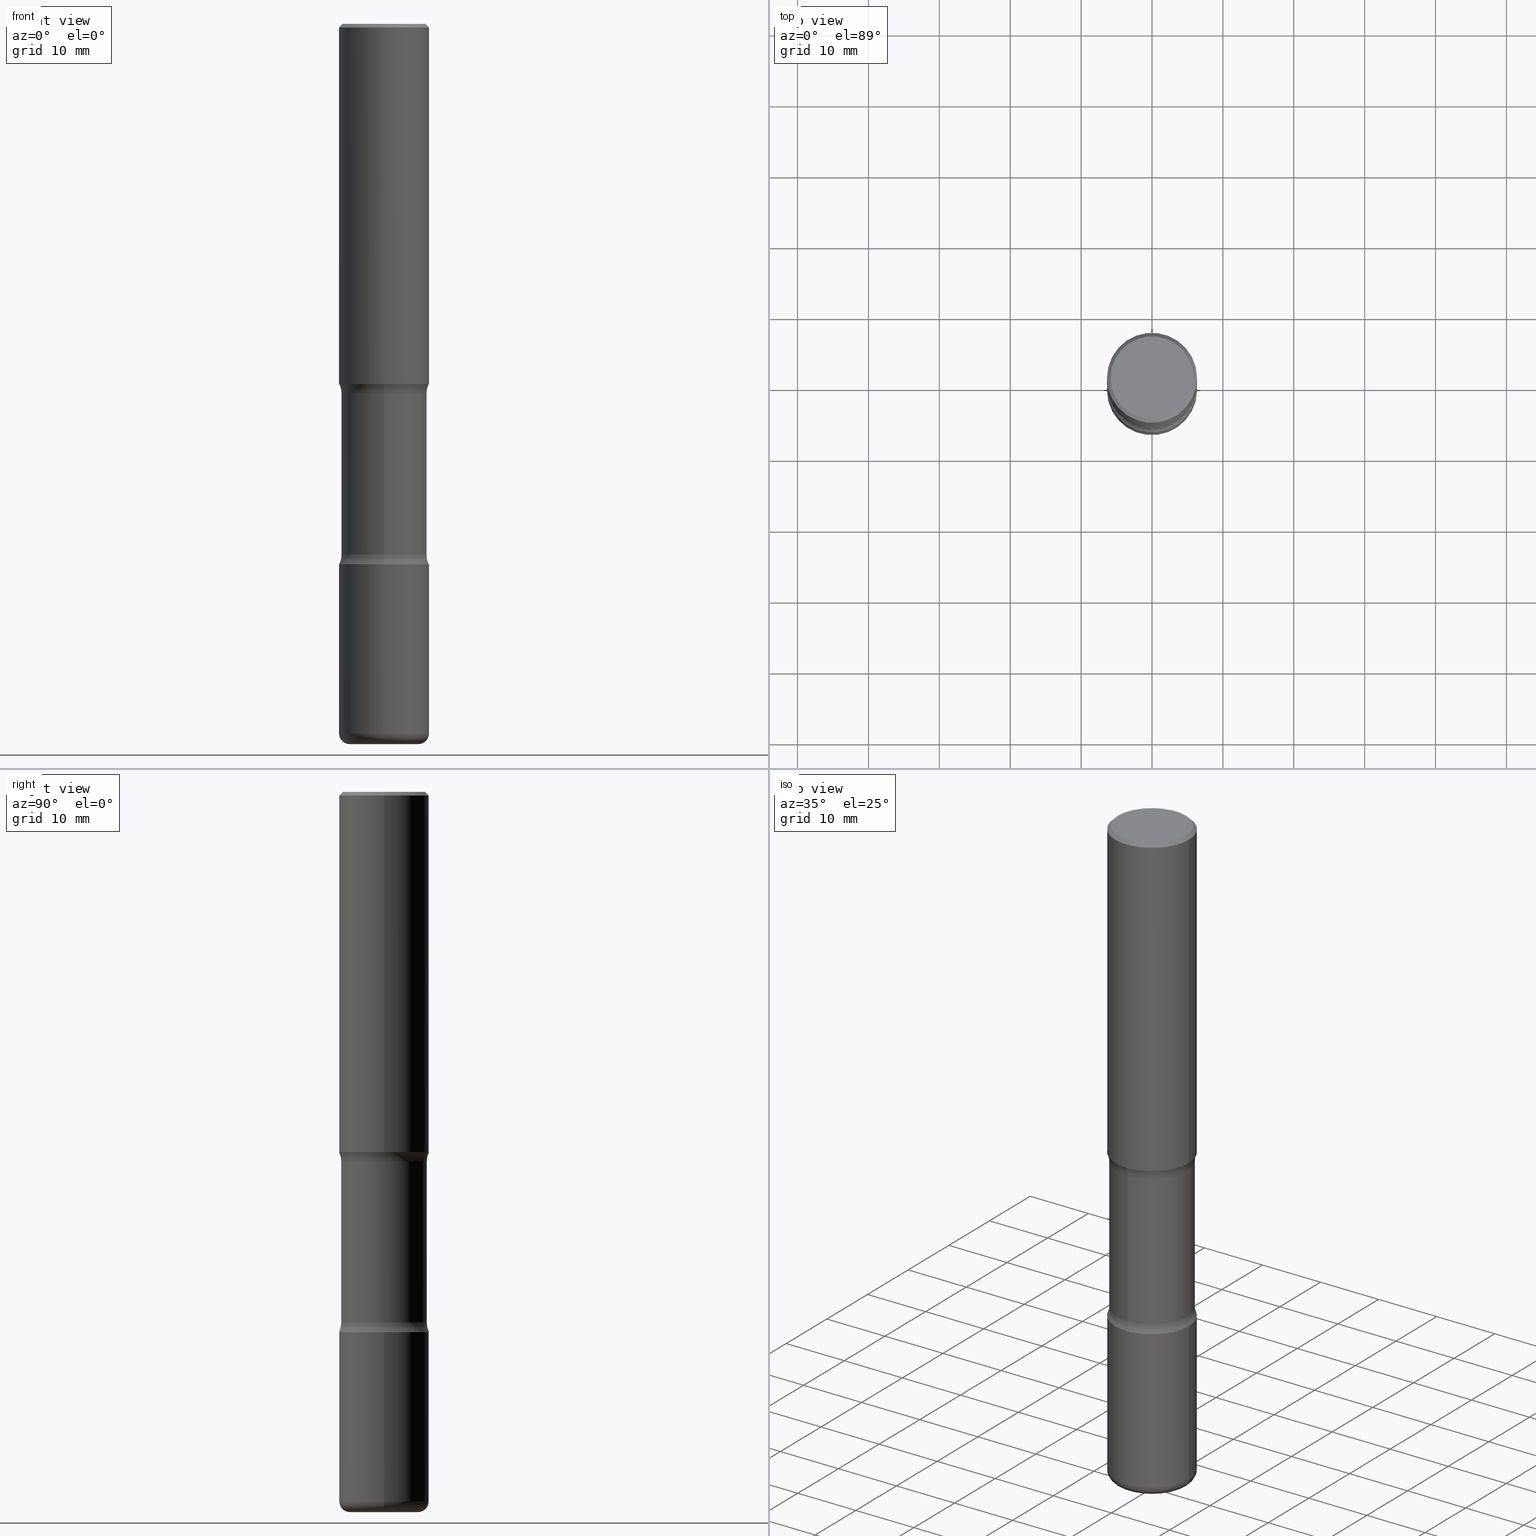
[diagram: canonical four-view strip — front | top / right | iso, engineering-drawing reading convention]
A machine part, canonical four-view strip (front | top / right | iso — engineering-drawing reading convention). The complete STEP part file that produces these views, byte-faithful:
ISO-10303-21;
HEADER;
FILE_DESCRIPTION (( 'STEP AP203' ),
    '1' );
FILE_NAME ('37885.STEP',
    '2024-03-02T01:04:47',
    ( '' ),
    ( '' ),
    'SwSTEP 2.0',
    'SolidWorks 2023',
    '' );
FILE_SCHEMA (( 'CONFIG_CONTROL_DESIGN' ));
ENDSEC;

DATA;
#1 = COORDINATED_UNIVERSAL_TIME_OFFSET ( 5, 0, .BEHIND. ) ;
#2 = AXIS2_PLACEMENT_3D ( 'NONE', #433, #383, #391 ) ;
#3 = AXIS2_PLACEMENT_3D ( 'NONE', #254, #126, #242 ) ;
#4 = ORIENTED_EDGE ( 'NONE', *, *, #347, .T. ) ;
#5 = EDGE_CURVE ( 'NONE', #344, #221, #487, .T. ) ;
#6 = DIRECTION ( 'NONE',  ( -0.7071067811865467956, 2.468850131082249172E-15, -0.7071067811865482389 ) ) ;
#7 = FACE_OUTER_BOUND ( 'NONE', #241, .T. ) ;
#8 = DIRECTION ( 'NONE',  ( 0.7071067811865467956, -7.319954787623254468E-15, -0.7071067811865482389 ) ) ;
#9 =( NAMED_UNIT ( * ) PLANE_ANGLE_UNIT ( ) SI_UNIT ( $, .RADIAN. ) );
#10 = CIRCLE ( 'NONE', #106, 0.2500000000000002776 ) ;
#11 = ORIENTED_EDGE ( 'NONE', *, *, #180, .F. ) ;
#12 = DIRECTION ( 'NONE',  ( -2.438088387897960049E-29, 3.491481338843145188E-15, 1.000000000000000000 ) ) ;
#13 =( LENGTH_UNIT ( ) NAMED_UNIT ( * ) SI_UNIT ( $, .METRE. ) );
#14 = PLANE ( 'NONE',  #129 ) ;
#15 = DATE_AND_TIME ( #55, #311 ) ;
#16 = ORIENTED_EDGE ( 'NONE', *, *, #324, .F. ) ;
#17 = EDGE_CURVE ( 'NONE', #280, #527, #104, .T. ) ;
#18 = AXIS2_PLACEMENT_3D ( 'NONE', #174, #275, #52 ) ;
#19 = CARTESIAN_POINT ( 'NONE',  ( -0.2500000000000002776, -1.033908340638546235E-14, -3.000000000000000444 ) ) ;
#20 = CARTESIAN_POINT ( 'NONE',  ( 7.336406418555409790E-29, -1.047444401652943635E-14, -3.000000000000000444 ) ) ;
#21 = ORIENTED_EDGE ( 'NONE', *, *, #62, .F. ) ;
#22 = DIRECTION ( 'NONE',  ( -2.445468806185136597E-29, 3.491481338843145583E-15, 1.000000000000000000 ) ) ;
#23 = ORIENTED_EDGE ( 'NONE', *, *, #535, .F. ) ;
#24 = ORIENTED_EDGE ( 'NONE', *, *, #485, .F. ) ;
#25 = DIRECTION ( 'NONE',  ( 2.530378452311521502E-29, -3.369885892833230986E-15, -1.000000000000000000 ) ) ;
#26 = EDGE_CURVE ( 'NONE', #186, #65, #235, .T. ) ;
#27 = VERTEX_POINT ( 'NONE', #328 ) ;
#28 = CARTESIAN_POINT ( 'NONE',  ( 2.531323970661321775E-15, 0.3624999999999928280, -2.054486236794260012 ) ) ;
#29 = FACE_OUTER_BOUND ( 'NONE', #460, .T. ) ;
#30 = ADVANCED_FACE ( 'NONE', ( #540 ), #435, .T. ) ;
#31 = DIRECTION ( 'NONE',  ( -2.445468806185136597E-29, 3.491481338843145583E-15, 1.000000000000000000 ) ) ;
#32 = DIRECTION ( 'NONE',  ( -2.445468806185136597E-29, 3.491481338843145583E-15, 1.000000000000000000 ) ) ;
#33 = ORIENTED_EDGE ( 'NONE', *, *, #485, .T. ) ;
#34 = FACE_OUTER_BOUND ( 'NONE', #252, .T. ) ;
#35 = AXIS2_PLACEMENT_3D ( 'NONE', #277, #407, #183 ) ;
#36 = CALENDAR_DATE ( 2024, 1, 3 ) ;
#37 = ORIENTED_EDGE ( 'NONE', *, *, #389, .F. ) ;
#38 = FACE_OUTER_BOUND ( 'NONE', #437, .T. ) ;
#39 = CARTESIAN_POINT ( 'NONE',  ( 0.000000000000000000, 0.000000000000000000, 0.000000000000000000 ) ) ;
#40 = ADVANCED_FACE ( 'NONE', ( #149 ), #14, .F. ) ;
#41 = ORIENTED_EDGE ( 'NONE', *, *, #441, .F. ) ;
#42 = CARTESIAN_POINT ( 'NONE',  ( 0.2499999999999999167, -1.784954126219745400E-15, -0.02000000000000006981 ) ) ;
#43 = CIRCLE ( 'NONE', #137, 0.2499999999999999167 ) ;
#44 = DIRECTION ( 'NONE',  ( -1.000000000000000000, 6.982962677686267499E-15, 0.000000000000000000 ) ) ;
#45 = DIRECTION ( 'NONE',  ( 1.000000000000000000, -6.982962677686269077E-15, 4.883557194083113462E-29 ) ) ;
#46 = ORIENTED_EDGE ( 'NONE', *, *, #324, .T. ) ;
#47 = PRODUCT_RELATED_PRODUCT_CATEGORY ( 'detail', '', ( #204 ) ) ;
#48 = ORIENTED_EDGE ( 'NONE', *, *, #180, .T. ) ;
#49 = ORIENTED_EDGE ( 'NONE', *, *, #499, .T. ) ;
#50 = AXIS2_PLACEMENT_3D ( 'NONE', #420, #321, #142 ) ;
#51 = DIRECTION ( 'NONE',  ( 6.982962677686265133E-15, 1.000000000000000000, -3.450755360418014766E-15 ) ) ;
#52 = DIRECTION ( 'NONE',  ( 6.982962677686265133E-15, 1.000000000000000000, -2.300503573612010239E-15 ) ) ;
#53 = FACE_OUTER_BOUND ( 'NONE', #351, .T. ) ;
#54 = ADVANCED_FACE ( 'NONE', ( #101 ), #100, .T. ) ;
#55 = CALENDAR_DATE ( 2024, 1, 3 ) ;
#56 = DIRECTION ( 'NONE',  ( 1.000000000000000000, -6.982962677686267499E-15, 4.876176775795935793E-29 ) ) ;
#57 = DIRECTION ( 'NONE',  ( -1.000000000000000000, 6.982962677686265922E-15, -4.876176775795935793E-29 ) ) ;
#58 = DIRECTION ( 'NONE',  ( 2.530378452311521502E-29, -3.369885892833230592E-15, -1.000000000000000000 ) ) ;
#59 = CLOSED_SHELL ( 'NONE', ( #169, #30, #401, #393, #411, #40 ) ) ;
#60 = CIRCLE ( 'NONE', #198, 0.2500000000000003886 ) ;
#61 = ORIENTED_EDGE ( 'NONE', *, *, #535, .T. ) ;
#62 = EDGE_CURVE ( 'NONE', #454, #280, #10, .T. ) ;
#63 = CARTESIAN_POINT ( 'NONE',  ( 1.658453635950587543E-15, 0.2374999999999862776, -4.000000000000000888 ) ) ;
#64 = DIRECTION ( 'NONE',  ( -2.445468806185136877E-29, 3.491481338843145188E-15, 1.000000000000000000 ) ) ;
#65 = VERTEX_POINT ( 'NONE', #536 ) ;
#66 = AXIS2_PLACEMENT_3D ( 'NONE', #358, #89, #45 ) ;
#67 = CARTESIAN_POINT ( 'NONE',  ( 0.000000000000000000, 0.000000000000000000, 0.000000000000000000 ) ) ;
#68 = AXIS2_PLACEMENT_3D ( 'NONE', #549, #474, #134 ) ;
#69 = ORIENTED_EDGE ( 'NONE', *, *, #359, .F. ) ;
#70 = DIRECTION ( 'NONE',  ( 1.000000000000000000, -6.982962677686267499E-15, 0.000000000000000000 ) ) ;
#71 = CARTESIAN_POINT ( 'NONE',  ( 7.203162026108633562E-29, -1.028420633753849345E-14, -2.945513763205741320 ) ) ;
#72 = PERSON_AND_ORGANIZATION_ROLE ( 'classification_officer' ) ;
#73 = DIRECTION ( 'NONE',  ( 2.530378452311521502E-29, -3.369885892833230592E-15, -1.000000000000000000 ) ) ;
#74 = APPROVAL ( #368, 'UNSPECIFIED' ) ;
#75 = DIRECTION ( 'NONE',  ( 6.982962677686265922E-15, 1.000000000000000000, -3.369885892833230986E-15 ) ) ;
#76 = DIRECTION ( 'NONE',  ( 1.000000000000000000, -6.860497997771530774E-15, 4.842287994361612002E-29 ) ) ;
#77 = APPROVAL_ROLE ( '' ) ;
#78 = EDGE_LOOP ( 'NONE', ( #4, #218 ) ) ;
#79 = DIRECTION ( 'NONE',  ( -2.445468806185136597E-29, 3.491481338843145583E-15, 1.000000000000000000 ) ) ;
#80 = ORIENTED_EDGE ( 'NONE', *, *, #141, .F. ) ;
#81 = TOROIDAL_SURFACE ( 'NONE', #2, 0.3625000000000000999, 0.1250000000000000000 ) ;
#82 = EDGE_CURVE ( 'NONE', #186, #527, #467, .T. ) ;
#83 = ORGANIZATION ( 'UNSPECIFIED', 'UNSPECIFIED', '' ) ;
#84 = ORIENTED_EDGE ( 'NONE', *, *, #17, .F. ) ;
#85 = EDGE_CURVE ( 'NONE', #158, #426, #455, .T. ) ;
#86 = PERSON_AND_ORGANIZATION_ROLE ( 'creator' ) ;
#87 = ORIENTED_EDGE ( 'NONE', *, *, #531, .T. ) ;
#88 = DIMENSIONAL_EXPONENTS ( 1.000000000000000000, 0.000000000000000000, 0.000000000000000000, 0.000000000000000000, 0.000000000000000000, 0.000000000000000000, 0.000000000000000000 ) ;
#89 = DIRECTION ( 'NONE',  ( -2.445468806185136597E-29, 3.491481338843145583E-15, 1.000000000000000000 ) ) ;
#90 = CARTESIAN_POINT ( 'NONE',  ( 4.890937612370289799E-31, -6.982962677686315028E-17, -0.02000000000000006981 ) ) ;
#91 = PERSON_AND_ORGANIZATION ( #274, #83 ) ;
#92 = CIRCLE ( 'NONE', #131, 0.2499999999999999167 ) ;
#93 = DIRECTION ( 'NONE',  ( -2.445468806185136597E-29, 3.491481338843145583E-15, 1.000000000000000000 ) ) ;
#94 = ORIENTED_EDGE ( 'NONE', *, *, #5, .F. ) ;
#95 = LENGTH_MEASURE_WITH_UNIT ( LENGTH_MEASURE( 0.02539999999999999897 ), #13 );
#96 = AXIS2_PLACEMENT_3D ( 'NONE', #229, #500, #464 ) ;
#97 = ADVANCED_FACE ( 'NONE', ( #53 ), #412, .F. ) ;
#98 = DIRECTION ( 'NONE',  ( 2.530378452311521502E-29, -3.369885892833230592E-15, -1.000000000000000000 ) ) ;
#99 = LINE ( 'NONE', #281, #372 ) ;
#100 = CYLINDRICAL_SURFACE ( 'NONE', #329, 0.2375000000000000999 ) ;
#101 = FACE_OUTER_BOUND ( 'NONE', #238, .T. ) ;
#102 = AXIS2_PLACEMENT_3D ( 'NONE', #193, #498, #458 ) ;
#103 = EDGE_CURVE ( 'NONE', #399, #403, #450, .T. ) ;
#104 = CIRCLE ( 'NONE', #264, 0.1250000000000000278 ) ;
#105 = ORIENTED_EDGE ( 'NONE', *, *, #103, .F. ) ;
#106 = AXIS2_PLACEMENT_3D ( 'NONE', #469, #367, #284 ) ;
#107 = AXIS2_PLACEMENT_3D ( 'NONE', #468, #58, #417 ) ;
#108 = CARTESIAN_POINT ( 'NONE',  ( 9.635147096369438236E-29, -1.375643647504199401E-14, -3.939999999999999947 ) ) ;
#109 = DIRECTION ( 'NONE',  ( 2.438088387897960049E-29, -3.491481338843145188E-15, -1.000000000000000000 ) ) ;
#110 = DIRECTION ( 'NONE',  ( 2.530378452311521502E-29, -3.369885892833230986E-15, -1.000000000000000000 ) ) ;
#111 = AXIS2_PLACEMENT_3D ( 'NONE', #147, #109, #172 ) ;
#112 = CYLINDRICAL_SURFACE ( 'NONE', #340, 0.2500000000000000555 ) ;
#113 = COORDINATED_UNIVERSAL_TIME_OFFSET ( 5, 0, .BEHIND. ) ;
#114 = CIRCLE ( 'NONE', #267, 0.2500000000000003886 ) ;
#115 = PERSON_AND_ORGANIZATION_ROLE ( 'design_supplier' ) ;
#116 = EDGE_CURVE ( 'NONE', #65, #305, #385, .T. ) ;
#117 = CALENDAR_DATE ( 2024, 1, 3 ) ;
#118 = DIRECTION ( 'NONE',  ( 2.530378452311521502E-29, -3.369885892833230986E-15, -1.000000000000000000 ) ) ;
#119 = CARTESIAN_POINT ( 'NONE',  ( 4.890937612370289799E-31, -6.982962677686315028E-17, -0.02000000000000006981 ) ) ;
#120 = APPROVAL_STATUS ( 'not_yet_approved' ) ;
#121 = ORIENTED_EDGE ( 'NONE', *, *, #116, .F. ) ;
#122 = ORIENTED_EDGE ( 'NONE', *, *, #308, .F. ) ;
#123 = MANIFOLD_SOLID_BREP ( 'Body-Move/Copy2[4]', #362 ) ;
#124 = DIRECTION ( 'NONE',  ( -2.445468806185136597E-29, 3.491481338843145583E-15, 1.000000000000000000 ) ) ;
#125 = LINE ( 'NONE', #349, #130 ) ;
#126 = DIRECTION ( 'NONE',  ( 2.530378452311521502E-29, -3.369885892833230986E-15, -1.000000000000000000 ) ) ;
#127 = COORDINATED_UNIVERSAL_TIME_OFFSET ( 5, 0, .BEHIND. ) ;
#128 = ADVANCED_FACE ( 'NONE', ( #212 ), #292, .T. ) ;
#129 = AXIS2_PLACEMENT_3D ( 'NONE', #376, #287, #57 ) ;
#130 = VECTOR ( 'NONE', #6, 39.37007874015748143 ) ;
#131 = AXIS2_PLACEMENT_3D ( 'NONE', #497, #390, #70 ) ;
#132 = ORIENTED_EDGE ( 'NONE', *, *, #457, .F. ) ;
#133 = EDGE_CURVE ( 'NONE', #483, #197, #43, .T. ) ;
#134 = DIRECTION ( 'NONE',  ( 6.982962677686265922E-15, 1.000000000000000000, -4.370956789862816416E-15 ) ) ;
#135 = APPROVAL_ROLE ( '' ) ;
#136 = FACE_OUTER_BOUND ( 'NONE', #297, .T. ) ;
#137 = AXIS2_PLACEMENT_3D ( 'NONE', #119, #167, #476 ) ;
#138 = PERSON_AND_ORGANIZATION_ROLE ( 'design_owner' ) ;
#139 =( CONVERSION_BASED_UNIT ( 'INCH', #95 ) LENGTH_UNIT ( ) NAMED_UNIT ( #88 ) );
#140 = DIRECTION ( 'NONE',  ( 1.000000000000000000, -6.982962677686269077E-15, 4.883557194083113462E-29 ) ) ;
#141 = EDGE_CURVE ( 'NONE', #221, #344, #370, .T. ) ;
#142 = DIRECTION ( 'NONE',  ( 1.000000000000000000, -6.982962677686265922E-15, 0.000000000000000000 ) ) ;
#143 = AXIS2_PLACEMENT_3D ( 'NONE', #394, #480, #560 ) ;
#144 = PERSON_AND_ORGANIZATION ( #274, #83 ) ;
#145 = LOCAL_TIME ( 20, 4, 47.00000000000000000, #113 ) ;
#146 = EDGE_LOOP ( 'NONE', ( #105, #165, #289, #37 ) ) ;
#147 = CARTESIAN_POINT ( 'NONE',  ( 1.606081415867840476E-15, 0.2299999999999998990, -8.030407079339231961E-16 ) ) ;
#148 = CYLINDRICAL_SURFACE ( 'NONE', #363, 0.2500000000000000555 ) ;
#149 = FACE_OUTER_BOUND ( 'NONE', #78, .T. ) ;
#150 = EDGE_CURVE ( 'NONE', #454, #217, #516, .T. ) ;
#151 = ORIENTED_EDGE ( 'NONE', *, *, #347, .F. ) ;
#152 = APPROVAL_DATE_TIME ( #524, #74 ) ;
#153 = ORIENTED_EDGE ( 'NONE', *, *, #359, .T. ) ;
#154 = VECTOR ( 'NONE', #215, 39.37007874015748143 ) ;
#155 = VECTOR ( 'NONE', #156, 39.37007874015748143 ) ;
#156 = DIRECTION ( 'NONE',  ( -2.445468806185136877E-29, 3.491481338843145188E-15, 1.000000000000000000 ) ) ;
#157 = DESIGN_CONTEXT ( 'detailed design', #301, 'design' ) ;
#158 = VERTEX_POINT ( 'NONE', #220 ) ;
#159 = ORIENTED_EDGE ( 'NONE', *, *, #160, .T. ) ;
#160 = EDGE_CURVE ( 'NONE', #27, #483, #125, .T. ) ;
#161 = CARTESIAN_POINT ( 'NONE',  ( 1.658453635950560525E-15, 0.2374999999999897748, -2.945513763205741764 ) ) ;
#162 = FACE_OUTER_BOUND ( 'NONE', #195, .T. ) ;
#163 = CARTESIAN_POINT ( 'NONE',  ( 1.658453635950538436E-15, 0.2374999999999928557, -2.054486236794259568 ) ) ;
#164 = DATE_TIME_ROLE ( 'classification_date' ) ;
#165 = ORIENTED_EDGE ( 'NONE', *, *, #545, .T. ) ;
#166 = CARTESIAN_POINT ( 'NONE',  ( 0.000000000000000000, 0.000000000000000000, 0.000000000000000000 ) ) ;
#167 = DIRECTION ( 'NONE',  ( -2.445468806185136597E-29, 3.491481338843145583E-15, 1.000000000000000000 ) ) ;
#168 = DATE_AND_TIME ( #36, #555 ) ;
#169 = ADVANCED_FACE ( 'NONE', ( #434 ), #443, .T. ) ;
#170 = ORIENTED_EDGE ( 'NONE', *, *, #477, .T. ) ;
#171 = CARTESIAN_POINT ( 'NONE',  ( -1.715124499442836348E-15, -0.2500000000000074385, -1.999999999999999112 ) ) ;
#172 = DIRECTION ( 'NONE',  ( -1.000000000000000000, 6.982962677686265922E-15, -4.876176775795935793E-29 ) ) ;
#173 = ORIENTED_EDGE ( 'NONE', *, *, #441, .T. ) ;
#174 = CARTESIAN_POINT ( 'NONE',  ( 7.198535619023675570E-29, -1.029083161580289368E-14, -2.945513763205741320 ) ) ;
#175 = CARTESIAN_POINT ( 'NONE',  ( 7.203162026108633562E-29, -1.028420633753849345E-14, -2.945513763205741320 ) ) ;
#176 = TOROIDAL_SURFACE ( 'NONE', #184, 0.3625000000000000999, 0.1250000000000000278 ) ;
#177 = ORIENTED_EDGE ( 'NONE', *, *, #377, .F. ) ;
#178 = DIRECTION ( 'NONE',  ( 6.982962677686265922E-15, 1.000000000000000000, -3.369885892833230986E-15 ) ) ;
#179 = DIRECTION ( 'NONE',  ( 1.000000000000000000, -6.982962677686265922E-15, 4.876176775795935793E-29 ) ) ;
#180 = EDGE_CURVE ( 'NONE', #344, #373, #354, .T. ) ;
#181 = AXIS2_PLACEMENT_3D ( 'NONE', #108, #379, #140 ) ;
#182 = CIRCLE ( 'NONE', #546, 0.05999999999999997696 ) ;
#183 = DIRECTION ( 'NONE',  ( 1.000000000000000000, -6.982962677686270655E-15, 0.000000000000000000 ) ) ;
#184 = AXIS2_PLACEMENT_3D ( 'NONE', #71, #249, #75 ) ;
#185 = CIRCLE ( 'NONE', #396, 0.1250000000000000000 ) ;
#186 = VERTEX_POINT ( 'NONE', #163 ) ;
#187 = ADVANCED_FACE ( 'NONE', ( #519 ), #306, .F. ) ;
#188 = APPROVAL ( #266, 'UNSPECIFIED' ) ;
#189 = DIRECTION ( 'NONE',  ( 6.982962677686265133E-15, 1.000000000000000000, -2.300503573612010239E-15 ) ) ;
#190 = ORIENTED_EDGE ( 'NONE', *, *, #491, .T. ) ;
#191 = VECTOR ( 'NONE', #257, 39.37007874015748143 ) ;
#192 =( GEOMETRIC_REPRESENTATION_CONTEXT ( 3 ) GLOBAL_UNCERTAINTY_ASSIGNED_CONTEXT ( ( #268 ) ) GLOBAL_UNIT_ASSIGNED_CONTEXT ( ( #139, #9, #408 ) ) REPRESENTATION_CONTEXT ( 'NONE', 'WORKASPACE' ) );
#193 = CARTESIAN_POINT ( 'NONE',  ( 9.781875224740546387E-29, -1.396592535537258233E-14, -4.000000000000000000 ) ) ;
#194 = DIRECTION ( 'NONE',  ( -2.530378452311521502E-29, 3.369885892833230592E-15, 1.000000000000000000 ) ) ;
#195 = EDGE_LOOP ( 'NONE', ( #61, #190, #325, #24 ) ) ;
#196 = LINE ( 'NONE', #451, #191 ) ;
#197 = VERTEX_POINT ( 'NONE', #42 ) ;
#198 = AXIS2_PLACEMENT_3D ( 'NONE', #558, #293, #205 ) ;
#199 = CIRCLE ( 'NONE', #364, 0.2500000000000003886 ) ;
#200 = DIRECTION ( 'NONE',  ( -1.000000000000000000, 6.982962677686265922E-15, -4.883557194083112340E-29 ) ) ;
#201 = ADVANCED_FACE ( 'NONE', ( #357 ), #484, .T. ) ;
#202 = DIRECTION ( 'NONE',  ( -2.445468806185136597E-29, 3.491481338843145583E-15, 1.000000000000000000 ) ) ;
#203 = CARTESIAN_POINT ( 'NONE',  ( -0.2500000000000000555, 1.776356839400250859E-15, -1.229733772563726866E-29 ) ) ;
#204 = PRODUCT ( '37885', '37885', '', ( #398 ) ) ;
#205 = DIRECTION ( 'NONE',  ( 6.982962677686265133E-15, 1.000000000000000000, -3.278217592397110735E-15 ) ) ;
#206 = CIRCLE ( 'NONE', #18, 0.2375000000000000722 ) ;
#207 = DIRECTION ( 'NONE',  ( 2.530378452311521502E-29, -3.369885892833230986E-15, -1.000000000000000000 ) ) ;
#208 = DATE_AND_TIME ( #392, #145 ) ;
#209 = ORIENTED_EDGE ( 'NONE', *, *, #377, .T. ) ;
#210 = EDGE_LOOP ( 'NONE', ( #410, #228 ) ) ;
#211 = CARTESIAN_POINT ( 'NONE',  ( 0.000000000000000000, 0.000000000000000000, 0.000000000000000000 ) ) ;
#212 = FACE_OUTER_BOUND ( 'NONE', #356, .T. ) ;
#213 = DIRECTION ( 'NONE',  ( 1.000000000000000000, -6.982962677686265922E-15, 0.000000000000000000 ) ) ;
#214 = DIRECTION ( 'NONE',  ( -2.445468806185136597E-29, 3.491481338843145583E-15, 1.000000000000000000 ) ) ;
#215 = DIRECTION ( 'NONE',  ( -2.445468806185136877E-29, 3.491481338843145188E-15, 1.000000000000000000 ) ) ;
#216 = SECURITY_CLASSIFICATION ( '', '', #294 ) ;
#217 = VERTEX_POINT ( 'NONE', #438 ) ;
#218 = ORIENTED_EDGE ( 'NONE', *, *, #389, .T. ) ;
#219 = CC_DESIGN_PERSON_AND_ORGANIZATION_ASSIGNMENT ( #534, #138, ( #204 ) ) ;
#220 = CARTESIAN_POINT ( 'NONE',  ( -0.2500000000000001665, -1.750039312831323809E-15, -2.000000000000000000 ) ) ;
#221 = VERTEX_POINT ( 'NONE', #272 ) ;
#222 = EDGE_CURVE ( 'NONE', #373, #423, #196, .T. ) ;
#223 = AXIS2_PLACEMENT_3D ( 'NONE', #20, #194, #375 ) ;
#224 = APPROVAL_PERSON_ORGANIZATION ( #442, #548, #77 ) ;
#225 = ORIENTED_EDGE ( 'NONE', *, *, #232, .F. ) ;
#226 = FACE_OUTER_BOUND ( 'NONE', #384, .T. ) ;
#227 = DIRECTION ( 'NONE',  ( -2.445468806185136597E-29, 3.491481338843145583E-15, 1.000000000000000000 ) ) ;
#228 = ORIENTED_EDGE ( 'NONE', *, *, #62, .T. ) ;
#229 = CARTESIAN_POINT ( 'NONE',  ( 9.866784870866931853E-29, -1.384432990936266734E-14, -4.000000000000000000 ) ) ;
#230 = ORIENTED_EDGE ( 'NONE', *, *, #491, .F. ) ;
#231 = COORDINATED_UNIVERSAL_TIME_OFFSET ( 5, 0, .BEHIND. ) ;
#232 = EDGE_CURVE ( 'NONE', #305, #239, #60, .T. ) ;
#233 = DIRECTION ( 'NONE',  ( -1.000000000000000000, 7.105427357600993970E-15, 0.000000000000000000 ) ) ;
#234 = ORIENTED_EDGE ( 'NONE', *, *, #285, .T. ) ;
#235 = CIRCLE ( 'NONE', #339, 0.2375000000000001277 ) ;
#236 = AXIS2_PLACEMENT_3D ( 'NONE', #90, #440, #44 ) ;
#237 = CIRCLE ( 'NONE', #322, 0.2500000000000001665 ) ;
#238 = EDGE_LOOP ( 'NONE', ( #513, #170, #16, #309 ) ) ;
#239 = VERTEX_POINT ( 'NONE', #514 ) ;
#240 = DIRECTION ( 'NONE',  ( -6.982962677686265133E-15, -1.000000000000000000, 0.000000000000000000 ) ) ;
#241 = EDGE_LOOP ( 'NONE', ( #23, #557 ) ) ;
#242 = DIRECTION ( 'NONE',  ( 6.982962677686265133E-15, 1.000000000000000000, -3.450755360418014766E-15 ) ) ;
#243 = CC_DESIGN_PERSON_AND_ORGANIZATION_ASSIGNMENT ( #360, #291, ( #418 ) ) ;
#244 = CIRCLE ( 'NONE', #471, 0.2299999999999998990 ) ;
#245 = CIRCLE ( 'NONE', #538, 0.2299999999999998990 ) ;
#246 = CARTESIAN_POINT ( 'NONE',  ( 0.1900000000000003630, -1.529268826413297711E-14, -4.000000000000000000 ) ) ;
#247 = LINE ( 'NONE', #424, #449 ) ;
#248 = ORIENTED_EDGE ( 'NONE', *, *, #285, .F. ) ;
#249 = DIRECTION ( 'NONE',  ( 2.530378452311521502E-29, -3.369885892833230986E-15, -1.000000000000000000 ) ) ;
#250 = DIRECTION ( 'NONE',  ( 6.982962677686265133E-15, 1.000000000000000000, -3.278217592397110735E-15 ) ) ;
#251 = ORIENTED_EDGE ( 'NONE', *, *, #85, .T. ) ;
#252 = EDGE_LOOP ( 'NONE', ( #300, #444, #313, #421 ) ) ;
#253 = DIRECTION ( 'NONE',  ( 6.982962677686265133E-15, 1.000000000000000000, -2.300503573612010239E-15 ) ) ;
#254 = CARTESIAN_POINT ( 'NONE',  ( 4.943898765775623630E-29, -7.288170524422749615E-15, -2.054486236794258680 ) ) ;
#255 = EDGE_LOOP ( 'NONE', ( #333, #132, #352, #46 ) ) ;
#256 = TOROIDAL_SURFACE ( 'NONE', #66, 0.1900000000000003630, 0.05999999999999995615 ) ;
#257 = DIRECTION ( 'NONE',  ( -2.445468806185136877E-29, 3.491481338843145188E-15, 1.000000000000000000 ) ) ;
#258 = DIRECTION ( 'NONE',  ( 6.860497997771529985E-15, 1.000000000000000000, 0.000000000000000000 ) ) ;
#259 = CARTESIAN_POINT ( 'NONE',  ( -2.486930524192108484E-15, -0.3625000000000104250, -2.945513763205740432 ) ) ;
#260 = DIRECTION ( 'NONE',  ( 2.530378452311521502E-29, -3.369885892833230986E-15, -1.000000000000000000 ) ) ;
#261 = EDGE_LOOP ( 'NONE', ( #404, #153, #248, #11 ) ) ;
#262 = CC_DESIGN_PERSON_AND_ORGANIZATION_ASSIGNMENT ( #144, #72, ( #216 ) ) ;
#263 = VERTEX_POINT ( 'NONE', #526 ) ;
#264 = AXIS2_PLACEMENT_3D ( 'NONE', #508, #416, #240 ) ;
#265 = CONICAL_SURFACE ( 'NONE', #276, 0.2499999999999999167, 0.7853981633974472798 ) ;
#266 = APPROVAL_STATUS ( 'not_yet_approved' ) ;
#267 = AXIS2_PLACEMENT_3D ( 'NONE', #318, #227, #453 ) ;
#268 = UNCERTAINTY_MEASURE_WITH_UNIT (LENGTH_MEASURE( 1.000000000000000082E-05 ), #139, 'distance_accuracy_value', 'NONE');
#269 = ADVANCED_FACE ( 'NONE', ( #34 ), #466, .F. ) ;
#270 = ORIENTED_EDGE ( 'NONE', *, *, #141, .T. ) ;
#271 = APPLICATION_CONTEXT ( 'configuration controlled 3d designs of mechanical parts and assemblies' ) ;
#272 = CARTESIAN_POINT ( 'NONE',  ( -0.1900000000000003630, -1.229798689653506559E-14, -4.000000000000000000 ) ) ;
#273 = ADVANCED_FACE ( 'NONE', ( #473 ), #265, .T. ) ;
#274 = PERSON ( 'UNSPECIFIED', 'UNSPECIFIED', 'UNSPECIFIED', ('UNSPECIFIED'), ('UNSPECIFIED'), ('UNSPECIFIED') ) ;
#275 = DIRECTION ( 'NONE',  ( 2.530378452311521502E-29, -3.369885892833230986E-15, -1.000000000000000000 ) ) ;
#276 = AXIS2_PLACEMENT_3D ( 'NONE', #439, #348, #337 ) ;
#277 = CARTESIAN_POINT ( 'NONE',  ( 7.336406418555409790E-29, -1.047444401652943635E-14, -3.000000000000000444 ) ) ;
#278 = ORIENTED_EDGE ( 'NONE', *, *, #499, .F. ) ;
#279 = ADVANCED_FACE ( 'NONE', ( #162 ), #112, .T. ) ;
#280 = VERTEX_POINT ( 'NONE', #345 ) ;
#281 = CARTESIAN_POINT ( 'NONE',  ( -1.629368274470640415E-15, -0.2375000000000139222, -3.999999999999999556 ) ) ;
#282 = APPROVAL_ROLE ( '' ) ;
#283 = CARTESIAN_POINT ( 'NONE',  ( -0.1900000000000003630, -1.240640527709780088E-14, -3.939999999999999947 ) ) ;
#284 = DIRECTION ( 'NONE',  ( 6.982962677686265922E-15, 1.000000000000000000, -4.370956789862816416E-15 ) ) ;
#285 = EDGE_CURVE ( 'NONE', #373, #399, #330, .T. ) ;
#286 = CARTESIAN_POINT ( 'NONE',  ( 0.2500000000000003331, -1.550217714446356385E-14, -3.939999999999999947 ) ) ;
#287 = DIRECTION ( 'NONE',  ( 2.438088387897960049E-29, -3.491481338843145188E-15, -1.000000000000000000 ) ) ;
#288 = CIRCLE ( 'NONE', #507, 0.2500000000000002776 ) ;
#289 = ORIENTED_EDGE ( 'NONE', *, *, #222, .T. ) ;
#290 = ADVANCED_FACE ( 'NONE', ( #298 ), #81, .F. ) ;
#291 = PERSON_AND_ORGANIZATION_ROLE ( 'creator' ) ;
#292 = CONICAL_SURFACE ( 'NONE', #236, 0.2499999999999999167, 0.7853981633974472798 ) ;
#293 = DIRECTION ( 'NONE',  ( 2.530378452311521502E-29, -3.369885892833230986E-15, -1.000000000000000000 ) ) ;
#294 = SECURITY_CLASSIFICATION_LEVEL ( 'unclassified' ) ;
#295 = ORIENTED_EDGE ( 'NONE', *, *, #222, .F. ) ;
#296 = ADVANCED_FACE ( 'NONE', ( #38 ), #176, .F. ) ;
#297 = EDGE_LOOP ( 'NONE', ( #94, #80 ) ) ;
#298 = FACE_OUTER_BOUND ( 'NONE', #304, .T. ) ;
#299 = DIRECTION ( 'NONE',  ( 1.000000000000000000, -6.982962677686269077E-15, 0.000000000000000000 ) ) ;
#300 = ORIENTED_EDGE ( 'NONE', *, *, #481, .F. ) ;
#301 = APPLICATION_CONTEXT ( 'configuration controlled 3d designs of mechanical parts and assemblies' ) ;
#302 = DIRECTION ( 'NONE',  ( 6.860497997771532351E-15, 1.000000000000000000, 0.000000000000000000 ) ) ;
#303 = CARTESIAN_POINT ( 'NONE',  ( -0.2499999999999999167, 1.675911042644703182E-15, -0.02000000000000006981 ) ) ;
#304 = EDGE_LOOP ( 'NONE', ( #121, #492, #87, #49 ) ) ;
#305 = VERTEX_POINT ( 'NONE', #171 ) ;
#306 = TOROIDAL_SURFACE ( 'NONE', #425, 0.3625000000000000999, 0.1250000000000000278 ) ;
#307 = ORIENTED_EDGE ( 'NONE', *, *, #308, .T. ) ;
#308 = EDGE_CURVE ( 'NONE', #217, #527, #493, .T. ) ;
#309 = ORIENTED_EDGE ( 'NONE', *, *, #82, .F. ) ;
#310 = APPLICATION_PROTOCOL_DEFINITION ( 'international standard', 'config_control_design', 1994, #301 ) ;
#311 = LOCAL_TIME ( 20, 4, 47.00000000000000000, #553 ) ;
#312 = PLANE ( 'NONE',  #395 ) ;
#313 = ORIENTED_EDGE ( 'NONE', *, *, #232, .T. ) ;
#314 = EDGE_CURVE ( 'NONE', #27, #263, #244, .T. ) ;
#315 = CARTESIAN_POINT ( 'NONE',  ( 4.890937612370273194E-29, -6.982962677686291165E-15, -2.000000000000000000 ) ) ;
#316 = MANIFOLD_SOLID_BREP ( 'Body-Move/Copy2[1]', #59 ) ;
#317 = DIRECTION ( 'NONE',  ( 1.000000000000000000, 0.000000000000000000, 0.000000000000000000 ) ) ;
#318 = CARTESIAN_POINT ( 'NONE',  ( 9.635147096369438236E-29, -1.375643647504199401E-14, -3.939999999999999947 ) ) ;
#319 = DIRECTION ( 'NONE',  ( 2.530378452311521502E-29, -3.369885892833230986E-15, -1.000000000000000000 ) ) ;
#320 = CIRCLE ( 'NONE', #35, 0.2500000000000002776 ) ;
#321 = DIRECTION ( 'NONE',  ( -2.445468806185136597E-29, 3.491481338843145583E-15, 1.000000000000000000 ) ) ;
#322 = AXIS2_PLACEMENT_3D ( 'NONE', #402, #93, #213 ) ;
#323 = DIRECTION ( 'NONE',  ( 1.000000000000000000, -6.982962677686266711E-15, 4.876176775795935793E-29 ) ) ;
#324 = EDGE_CURVE ( 'NONE', #527, #217, #206, .T. ) ;
#325 = ORIENTED_EDGE ( 'NONE', *, *, #428, .F. ) ;
#326 = DIRECTION ( 'NONE',  ( -1.000000000000000000, 6.982962677686265922E-15, -4.876176775795935793E-29 ) ) ;
#327 = DIRECTION ( 'NONE',  ( 1.000000000000000000, -6.982962677686270655E-15, 0.000000000000000000 ) ) ;
#328 = CARTESIAN_POINT ( 'NONE',  ( -0.2299999999999998990, 1.640996229256271928E-15, -1.135408596578605420E-29 ) ) ;
#329 = AXIS2_PLACEMENT_3D ( 'NONE', #544, #319, #189 ) ;
#330 = CIRCLE ( 'NONE', #488, 0.2500000000000003886 ) ;
#331 = LOCAL_TIME ( 20, 4, 47.00000000000000000, #231 ) ;
#332 = ADVANCED_FACE ( 'NONE', ( #7 ), #361, .F. ) ;
#333 = ORIENTED_EDGE ( 'NONE', *, *, #150, .F. ) ;
#334 = DIRECTION ( 'NONE',  ( -2.445468806185136597E-29, 3.491481338843145583E-15, 1.000000000000000000 ) ) ;
#335 = ORIENTED_EDGE ( 'NONE', *, *, #150, .T. ) ;
#336 = ADVANCED_FACE ( 'NONE', ( #29 ), #148, .T. ) ;
#337 = DIRECTION ( 'NONE',  ( -1.000000000000000000, 6.982962677686267499E-15, 0.000000000000000000 ) ) ;
#338 = LINE ( 'NONE', #203, #155 ) ;
#339 = AXIS2_PLACEMENT_3D ( 'NONE', #422, #25, #51 ) ;
#340 = AXIS2_PLACEMENT_3D ( 'NONE', #211, #124, #387 ) ;
#341 = DIRECTION ( 'NONE',  ( 1.000000000000000000, -6.982962677686267499E-15, 4.876176775795936353E-29 ) ) ;
#342 = CARTESIAN_POINT ( 'NONE',  ( 9.635147096369438236E-29, -1.375643647504199401E-14, -3.939999999999999947 ) ) ;
#343 = DATE_AND_TIME ( #117, #472 ) ;
#344 = VERTEX_POINT ( 'NONE', #246 ) ;
#345 = CARTESIAN_POINT ( 'NONE',  ( 1.745740669421641422E-15, 0.2499999999999897582, -3.000000000000000888 ) ) ;
#346 = CARTESIAN_POINT ( 'NONE',  ( 9.781875224740546387E-29, -1.396592535537258233E-14, -4.000000000000000000 ) ) ;
#347 = EDGE_CURVE ( 'NONE', #423, #403, #288, .T. ) ;
#348 = DIRECTION ( 'NONE',  ( 2.445468806185136597E-29, -3.491481338843145583E-15, -1.000000000000000000 ) ) ;
#349 = CARTESIAN_POINT ( 'NONE',  ( -0.2499999999999999167, 1.675911042644703182E-15, -0.02000000000000006981 ) ) ;
#350 = PERSON_AND_ORGANIZATION ( #274, #83 ) ;
#351 = EDGE_LOOP ( 'NONE', ( #432, #173 ) ) ;
#352 = ORIENTED_EDGE ( 'NONE', *, *, #17, .T. ) ;
#353 = CC_DESIGN_PERSON_AND_ORGANIZATION_ASSIGNMENT ( #515, #115, ( #418 ) ) ;
#354 = CIRCLE ( 'NONE', #143, 0.05999999999999997696 ) ;
#355 = CC_DESIGN_APPROVAL ( #74, ( #216 ) ) ;
#356 = EDGE_LOOP ( 'NONE', ( #177, #482, #159, #459 ) ) ;
#357 = FACE_OUTER_BOUND ( 'NONE', #529, .T. ) ;
#358 = CARTESIAN_POINT ( 'NONE',  ( 9.635147096369438236E-29, -1.375643647504199401E-14, -3.939999999999999947 ) ) ;
#359 = EDGE_CURVE ( 'NONE', #221, #399, #182, .T. ) ;
#360 = PERSON_AND_ORGANIZATION ( #274, #83 ) ;
#361 = PLANE ( 'NONE',  #448 ) ;
#362 = CLOSED_SHELL ( 'NONE', ( #54, #296, #269, #290, #462, #374, #187, #201 ) ) ;
#363 = AXIS2_PLACEMENT_3D ( 'NONE', #67, #334, #56 ) ;
#364 = AXIS2_PLACEMENT_3D ( 'NONE', #511, #110, #250 ) ;
#365 = DIRECTION ( 'NONE',  ( 2.438088387897960049E-29, -3.491481338843145188E-15, -1.000000000000000000 ) ) ;
#366 = APPLICATION_PROTOCOL_DEFINITION ( 'international standard', 'config_control_design', 1994, #271 ) ;
#367 = DIRECTION ( 'NONE',  ( 2.530378452311521502E-29, -3.369885892833230986E-15, -1.000000000000000000 ) ) ;
#368 = APPROVAL_STATUS ( 'not_yet_approved' ) ;
#369 = CYLINDRICAL_SURFACE ( 'NONE', #381, 0.2500000000000003331 ) ;
#370 = CIRCLE ( 'NONE', #554, 0.1900000000000003630 ) ;
#371 = ORIENTED_EDGE ( 'NONE', *, *, #428, .T. ) ;
#372 = VECTOR ( 'NONE', #73, 39.37007874015748143 ) ;
#373 = VERTEX_POINT ( 'NONE', #286 ) ;
#374 = ADVANCED_FACE ( 'NONE', ( #465 ), #414, .F. ) ;
#375 = DIRECTION ( 'NONE',  ( -6.982962677686265922E-15, -1.000000000000000000, 3.369885892833230592E-15 ) ) ;
#376 = CARTESIAN_POINT ( 'NONE',  ( 7.336406418555409790E-29, -1.047444401652943635E-14, -3.000000000000000444 ) ) ;
#377 = EDGE_CURVE ( 'NONE', #263, #197, #543, .T. ) ;
#378 = CARTESIAN_POINT ( 'NONE',  ( 0.000000000000000000, 0.000000000000000000, 0.000000000000000000 ) ) ;
#379 = DIRECTION ( 'NONE',  ( -2.445468806185136597E-29, 3.491481338843145583E-15, 1.000000000000000000 ) ) ;
#380 = AXIS2_PLACEMENT_3D ( 'NONE', #397, #388, #258 ) ;
#381 = AXIS2_PLACEMENT_3D ( 'NONE', #378, #22, #323 ) ;
#382 = CC_DESIGN_DATE_AND_TIME_ASSIGNMENT ( #343, #521, ( #419 ) ) ;
#383 = DIRECTION ( 'NONE',  ( 2.530378452311521502E-29, -3.369885892833230986E-15, -1.000000000000000000 ) ) ;
#384 = EDGE_LOOP ( 'NONE', ( #69, #270, #48, #463 ) ) ;
#385 = CIRCLE ( 'NONE', #380, 0.1250000000000000000 ) ;
#386 = ORIENTED_EDGE ( 'NONE', *, *, #82, .T. ) ;
#387 = DIRECTION ( 'NONE',  ( 1.000000000000000000, -6.982962677686267499E-15, 4.876176775795935793E-29 ) ) ;
#388 = DIRECTION ( 'NONE',  ( 1.000000000000000000, -6.860497997771530774E-15, 4.842287994361612002E-29 ) ) ;
#389 = EDGE_CURVE ( 'NONE', #403, #423, #320, .T. ) ;
#390 = DIRECTION ( 'NONE',  ( -2.445468806185136597E-29, 3.491481338843145583E-15, 1.000000000000000000 ) ) ;
#391 = DIRECTION ( 'NONE',  ( 6.982962677686265922E-15, 1.000000000000000000, -3.369885892833230986E-15 ) ) ;
#392 = CALENDAR_DATE ( 2024, 1, 3 ) ;
#393 = ADVANCED_FACE ( 'NONE', ( #226 ), #256, .T. ) ;
#394 = CARTESIAN_POINT ( 'NONE',  ( 0.1900000000000003630, -1.508319938380238721E-14, -3.939999999999999947 ) ) ;
#395 = AXIS2_PLACEMENT_3D ( 'NONE', #452, #365, #326 ) ;
#396 = AXIS2_PLACEMENT_3D ( 'NONE', #28, #200, #550 ) ;
#397 = CARTESIAN_POINT ( 'NONE',  ( -2.486930524192130572E-15, -0.3625000000000073164, -2.054486236794257792 ) ) ;
#398 = MECHANICAL_CONTEXT ( 'NONE', #271, 'mechanical' ) ;
#399 = VERTEX_POINT ( 'NONE', #528 ) ;
#400 = PRODUCT_DEFINITION_SHAPE ( 'NONE', 'NONE',  #419 ) ;
#401 = ADVANCED_FACE ( 'NONE', ( #136 ), #312, .T. ) ;
#402 = CARTESIAN_POINT ( 'NONE',  ( 4.890937612370273194E-29, -6.982962677686291165E-15, -2.000000000000000000 ) ) ;
#403 = VERTEX_POINT ( 'NONE', #19 ) ;
#404 = ORIENTED_EDGE ( 'NONE', *, *, #5, .T. ) ;
#405 = AXIS2_PLACEMENT_3D ( 'NONE', #39, #214, #530 ) ;
#406 = CIRCLE ( 'NONE', #68, 0.2500000000000002776 ) ;
#407 = DIRECTION ( 'NONE',  ( -2.445468806185136597E-29, 3.491481338843145583E-15, 1.000000000000000000 ) ) ;
#408 =( NAMED_UNIT ( * ) SI_UNIT ( $, .STERADIAN. ) SOLID_ANGLE_UNIT ( ) );
#409 = CARTESIAN_POINT ( 'NONE',  ( 0.2500000000000002776, -1.222018468595100619E-14, -3.000000000000000444 ) ) ;
#410 = ORIENTED_EDGE ( 'NONE', *, *, #457, .T. ) ;
#411 = ADVANCED_FACE ( 'NONE', ( #542 ), #369, .T. ) ;
#412 = PLANE ( 'NONE',  #111 ) ;
#413 = CALENDAR_DATE ( 2024, 1, 3 ) ;
#414 = PLANE ( 'NONE',  #223 ) ;
#415 = AXIS2_PLACEMENT_3D ( 'NONE', #259, #76, #302 ) ;
#416 = DIRECTION ( 'NONE',  ( -1.000000000000000000, 6.982962677686265922E-15, -4.883557194083112340E-29 ) ) ;
#417 = DIRECTION ( 'NONE',  ( 6.982962677686265922E-15, 1.000000000000000000, -3.369885892833230592E-15 ) ) ;
#418 = PRODUCT_DEFINITION_FORMATION_WITH_SPECIFIED_SOURCE ( 'ANY', '', #204, .NOT_KNOWN. ) ;
#419 = PRODUCT_DEFINITION ( 'UNKNOWN', '', #418, #157 ) ;
#420 = CARTESIAN_POINT ( 'NONE',  ( 4.890937612370273194E-29, -6.982962677686291165E-15, -2.000000000000000000 ) ) ;
#421 = ORIENTED_EDGE ( 'NONE', *, *, #531, .F. ) ;
#422 = CARTESIAN_POINT ( 'NONE',  ( 4.943898765775623630E-29, -7.288170524422749615E-15, -2.054486236794258680 ) ) ;
#423 = VERTEX_POINT ( 'NONE', #409 ) ;
#424 = CARTESIAN_POINT ( 'NONE',  ( 0.2500000000000000555, -1.745740669421567269E-15, 1.219044193948984228E-29 ) ) ;
#425 = AXIS2_PLACEMENT_3D ( 'NONE', #175, #260, #178 ) ;
#426 = VERTEX_POINT ( 'NONE', #494 ) ;
#427 = CC_DESIGN_APPROVAL ( #188, ( #419 ) ) ;
#428 = EDGE_CURVE ( 'NONE', #197, #483, #92, .T. ) ;
#429 = CARTESIAN_POINT ( 'NONE',  ( 0.000000000000000000, 0.000000000000000000, 0.000000000000000000 ) ) ;
#430 = DIRECTION ( 'NONE',  ( 6.982962677686265922E-15, 1.000000000000000000, -3.369885892833230986E-15 ) ) ;
#431 = APPROVAL_DATE_TIME ( #208, #188 ) ;
#432 = ORIENTED_EDGE ( 'NONE', *, *, #314, .T. ) ;
#433 = CARTESIAN_POINT ( 'NONE',  ( 4.976491023364875751E-29, -7.241496556518841686E-15, -2.054486236794258680 ) ) ;
#434 = FACE_OUTER_BOUND ( 'NONE', #532, .T. ) ;
#435 = TOROIDAL_SURFACE ( 'NONE', #181, 0.1900000000000003630, 0.05999999999999995615 ) ;
#436 = AXIS2_PLACEMENT_3D ( 'NONE', #475, #207, #430 ) ;
#437 = EDGE_LOOP ( 'NONE', ( #21, #335, #307, #84 ) ) ;
#438 = CARTESIAN_POINT ( 'NONE',  ( -1.672246386956739071E-15, -0.2375000000000103417, -2.945513763205740876 ) ) ;
#439 = CARTESIAN_POINT ( 'NONE',  ( 4.890937612370289799E-31, -6.982962677686315028E-17, -0.02000000000000006981 ) ) ;
#440 = DIRECTION ( 'NONE',  ( 2.445468806185136597E-29, -3.491481338843145583E-15, -1.000000000000000000 ) ) ;
#441 = EDGE_CURVE ( 'NONE', #263, #27, #245, .T. ) ;
#442 = PERSON_AND_ORGANIZATION ( #274, #83 ) ;
#443 = CYLINDRICAL_SURFACE ( 'NONE', #405, 0.2500000000000003331 ) ;
#444 = ORIENTED_EDGE ( 'NONE', *, *, #116, .T. ) ;
#445 = CARTESIAN_POINT ( 'NONE',  ( -0.2500000000000003331, 1.776356839400252831E-15, -1.229733772563727987E-29 ) ) ;
#446 = CARTESIAN_POINT ( 'NONE',  ( 0.000000000000000000, 0.000000000000000000, 0.000000000000000000 ) ) ;
#447 = CLOSED_SHELL ( 'NONE', ( #279, #273, #128, #97, #332, #336 ) ) ;
#448 = AXIS2_PLACEMENT_3D ( 'NONE', #315, #12, #179 ) ;
#449 = VECTOR ( 'NONE', #64, 39.37007874015748143 ) ;
#450 = LINE ( 'NONE', #445, #154 ) ;
#451 = CARTESIAN_POINT ( 'NONE',  ( 0.2500000000000003331, -1.745740669421569044E-15, 1.219044193948985630E-29 ) ) ;
#452 = CARTESIAN_POINT ( 'NONE',  ( 9.781875224740546387E-29, -1.396592535537258233E-14, -4.000000000000000000 ) ) ;
#453 = DIRECTION ( 'NONE',  ( 1.000000000000000000, -6.982962677686267499E-15, 0.000000000000000000 ) ) ;
#454 = VERTEX_POINT ( 'NONE', #522 ) ;
#455 = CIRCLE ( 'NONE', #50, 0.2500000000000001665 ) ;
#456 = CIRCLE ( 'NONE', #3, 0.2375000000000001277 ) ;
#457 = EDGE_CURVE ( 'NONE', #280, #454, #406, .T. ) ;
#458 = DIRECTION ( 'NONE',  ( 1.000000000000000000, -6.982962677686269077E-15, 0.000000000000000000 ) ) ;
#459 = ORIENTED_EDGE ( 'NONE', *, *, #133, .T. ) ;
#460 = EDGE_LOOP ( 'NONE', ( #230, #251, #33, #556 ) ) ;
#461 = FACE_OUTER_BOUND ( 'NONE', #502, .T. ) ;
#462 = ADVANCED_FACE ( 'NONE', ( #461 ), #496, .F. ) ;
#463 = ORIENTED_EDGE ( 'NONE', *, *, #545, .F. ) ;
#464 = DIRECTION ( 'NONE',  ( 6.982962677686265133E-15, 1.000000000000000000, -2.300503573612010239E-15 ) ) ;
#465 = FACE_OUTER_BOUND ( 'NONE', #210, .T. ) ;
#466 = TOROIDAL_SURFACE ( 'NONE', #436, 0.3625000000000000999, 0.1250000000000000000 ) ;
#467 = LINE ( 'NONE', #63, #537 ) ;
#468 = CARTESIAN_POINT ( 'NONE',  ( 4.890937612370273194E-29, -6.982962677686291165E-15, -2.000000000000000000 ) ) ;
#469 = CARTESIAN_POINT ( 'NONE',  ( 7.336406418555409790E-29, -1.047444401652943635E-14, -3.000000000000000444 ) ) ;
#470 = CC_DESIGN_PERSON_AND_ORGANIZATION_ASSIGNMENT ( #350, #86, ( #419 ) ) ;
#471 = AXIS2_PLACEMENT_3D ( 'NONE', #166, #79, #523 ) ;
#472 = LOCAL_TIME ( 20, 4, 47.00000000000000000, #1 ) ;
#473 = FACE_OUTER_BOUND ( 'NONE', #552, .T. ) ;
#474 = DIRECTION ( 'NONE',  ( 2.530378452311521502E-29, -3.369885892833230986E-15, -1.000000000000000000 ) ) ;
#475 = CARTESIAN_POINT ( 'NONE',  ( 4.976491023364875751E-29, -7.241496556518841686E-15, -2.054486236794258680 ) ) ;
#476 = DIRECTION ( 'NONE',  ( 1.000000000000000000, -6.982962677686267499E-15, 0.000000000000000000 ) ) ;
#477 = EDGE_CURVE ( 'NONE', #65, #217, #99, .T. ) ;
#478 = DIRECTION ( 'NONE',  ( 1.000000000000000000, -6.982962677686267499E-15, 0.000000000000000000 ) ) ;
#479 = AXIS2_PLACEMENT_3D ( 'NONE', #518, #118, #253 ) ;
#480 = DIRECTION ( 'NONE',  ( -6.982962677686266711E-15, -1.000000000000000000, 3.491481338843145583E-15 ) ) ;
#481 = EDGE_CURVE ( 'NONE', #65, #186, #456, .T. ) ;
#482 = ORIENTED_EDGE ( 'NONE', *, *, #314, .F. ) ;
#483 = VERTEX_POINT ( 'NONE', #303 ) ;
#484 = CYLINDRICAL_SURFACE ( 'NONE', #96, 0.2375000000000000999 ) ;
#485 = EDGE_CURVE ( 'NONE', #426, #197, #247, .T. ) ;
#486 = ADVANCED_BREP_SHAPE_REPRESENTATION ( '37885', ( #316, #503, #123, #489 ), #192 ) ;
#487 = CIRCLE ( 'NONE', #102, 0.1900000000000003630 ) ;
#488 = AXIS2_PLACEMENT_3D ( 'NONE', #342, #32, #478 ) ;
#489 = AXIS2_PLACEMENT_3D ( 'NONE', #446, #533, #317 ) ;
#490 = ORIENTED_EDGE ( 'NONE', *, *, #160, .F. ) ;
#491 = EDGE_CURVE ( 'NONE', #158, #483, #338, .T. ) ;
#492 = ORIENTED_EDGE ( 'NONE', *, *, #26, .F. ) ;
#493 = CIRCLE ( 'NONE', #479, 0.2375000000000000722 ) ;
#494 = CARTESIAN_POINT ( 'NONE',  ( 0.2500000000000001665, -8.728703347107858632E-15, -2.000000000000000000 ) ) ;
#495 = APPROVAL_PERSON_ORGANIZATION ( #91, #188, #135 ) ;
#496 = PLANE ( 'NONE',  #107 ) ;
#497 = CARTESIAN_POINT ( 'NONE',  ( 4.890937612370289799E-31, -6.982962677686315028E-17, -0.02000000000000006981 ) ) ;
#498 = DIRECTION ( 'NONE',  ( -2.445468806185136597E-29, 3.491481338843145583E-15, 1.000000000000000000 ) ) ;
#499 = EDGE_CURVE ( 'NONE', #239, #305, #199, .T. ) ;
#500 = DIRECTION ( 'NONE',  ( 2.530378452311521502E-29, -3.369885892833230986E-15, -1.000000000000000000 ) ) ;
#501 = DIRECTION ( 'NONE',  ( 7.105427357601001859E-15, 1.000000000000000000, -3.491481338843145583E-15 ) ) ;
#502 = EDGE_LOOP ( 'NONE', ( #278, #225 ) ) ;
#503 = MANIFOLD_SOLID_BREP ( 'Body-Move/Copy2[2]', #447 ) ;
#504 = SHAPE_DEFINITION_REPRESENTATION ( #400, #486 ) ;
#505 = VECTOR ( 'NONE', #8, 39.37007874015748143 ) ;
#506 = CARTESIAN_POINT ( 'NONE',  ( 0.2499999999999999167, -1.784954126219745400E-15, -0.02000000000000006981 ) ) ;
#507 = AXIS2_PLACEMENT_3D ( 'NONE', #510, #202, #327 ) ;
#508 = CARTESIAN_POINT ( 'NONE',  ( 2.531323970661343863E-15, 0.3624999999999897748, -2.945513763205742652 ) ) ;
#509 = APPROVAL_PERSON_ORGANIZATION ( #520, #74, #282 ) ;
#510 = CARTESIAN_POINT ( 'NONE',  ( 7.336406418555409790E-29, -1.047444401652943635E-14, -3.000000000000000444 ) ) ;
#511 = CARTESIAN_POINT ( 'NONE',  ( 4.806027966243888288E-29, -7.104558123696206156E-15, -2.000000000000000000 ) ) ;
#512 = CC_DESIGN_DATE_AND_TIME_ASSIGNMENT ( #15, #164, ( #216 ) ) ;
#513 = ORIENTED_EDGE ( 'NONE', *, *, #26, .T. ) ;
#514 = CARTESIAN_POINT ( 'NONE',  ( 1.745740669421617165E-15, 0.2499999999999933109, -2.000000000000000888 ) ) ;
#515 = PERSON_AND_ORGANIZATION ( #274, #83 ) ;
#516 = CIRCLE ( 'NONE', #415, 0.1250000000000000278 ) ;
#517 = CC_DESIGN_SECURITY_CLASSIFICATION ( #216, ( #418 ) ) ;
#518 = CARTESIAN_POINT ( 'NONE',  ( 7.198535619023675570E-29, -1.029083161580289368E-14, -2.945513763205741320 ) ) ;
#519 = FACE_OUTER_BOUND ( 'NONE', #255, .T. ) ;
#520 = PERSON_AND_ORGANIZATION ( #274, #83 ) ;
#521 = DATE_TIME_ROLE ( 'creation_date' ) ;
#522 = CARTESIAN_POINT ( 'NONE',  ( -1.715124499442811104E-15, -0.2500000000000107692, -2.999999999999999556 ) ) ;
#523 = DIRECTION ( 'NONE',  ( 1.000000000000000000, -6.982962677686267499E-15, 4.876176775795936353E-29 ) ) ;
#524 = DATE_AND_TIME ( #413, #331 ) ;
#525 = APPROVAL_DATE_TIME ( #168, #548 ) ;
#526 = CARTESIAN_POINT ( 'NONE',  ( 0.2299999999999998990, -1.681434332853598617E-15, 1.149527484987432660E-29 ) ) ;
#527 = VERTEX_POINT ( 'NONE', #161 ) ;
#528 = CARTESIAN_POINT ( 'NONE',  ( -0.2500000000000003331, -1.198007963564174197E-14, -3.939999999999999947 ) ) ;
#529 = EDGE_LOOP ( 'NONE', ( #539, #551, #386, #122 ) ) ;
#530 = DIRECTION ( 'NONE',  ( 1.000000000000000000, -6.982962677686266711E-15, 4.876176775795935793E-29 ) ) ;
#531 = EDGE_CURVE ( 'NONE', #186, #239, #185, .T. ) ;
#532 = EDGE_LOOP ( 'NONE', ( #234, #541, #151, #295 ) ) ;
#533 = DIRECTION ( 'NONE',  ( 0.000000000000000000, 0.000000000000000000, 1.000000000000000000 ) ) ;
#534 = PERSON_AND_ORGANIZATION ( #274, #83 ) ;
#535 = EDGE_CURVE ( 'NONE', #426, #158, #237, .T. ) ;
#536 = CARTESIAN_POINT ( 'NONE',  ( -1.672246386956763723E-15, -0.2375000000000074274, -2.054486236794258236 ) ) ;
#537 = VECTOR ( 'NONE', #98, 39.37007874015748143 ) ;
#538 = AXIS2_PLACEMENT_3D ( 'NONE', #429, #31, #341 ) ;
#539 = ORIENTED_EDGE ( 'NONE', *, *, #477, .F. ) ;
#540 = FACE_OUTER_BOUND ( 'NONE', #261, .T. ) ;
#541 = ORIENTED_EDGE ( 'NONE', *, *, #103, .T. ) ;
#542 = FACE_OUTER_BOUND ( 'NONE', #146, .T. ) ;
#543 = LINE ( 'NONE', #506, #505 ) ;
#544 = CARTESIAN_POINT ( 'NONE',  ( 9.866784870866931853E-29, -1.384432990936266734E-14, -4.000000000000000000 ) ) ;
#545 = EDGE_CURVE ( 'NONE', #399, #373, #114, .T. ) ;
#546 = AXIS2_PLACEMENT_3D ( 'NONE', #283, #501, #233 ) ;
#547 = CC_DESIGN_APPROVAL ( #548, ( #418 ) ) ;
#548 = APPROVAL ( #120, 'UNSPECIFIED' ) ;
#549 = CARTESIAN_POINT ( 'NONE',  ( 7.336406418555409790E-29, -1.047444401652943635E-14, -3.000000000000000444 ) ) ;
#550 = DIRECTION ( 'NONE',  ( -6.982962677686266711E-15, -1.000000000000000000, 0.000000000000000000 ) ) ;
#551 = ORIENTED_EDGE ( 'NONE', *, *, #481, .T. ) ;
#552 = EDGE_LOOP ( 'NONE', ( #41, #209, #371, #490 ) ) ;
#553 = COORDINATED_UNIVERSAL_TIME_OFFSET ( 5, 0, .BEHIND. ) ;
#554 = AXIS2_PLACEMENT_3D ( 'NONE', #346, #559, #299 ) ;
#555 = LOCAL_TIME ( 20, 4, 47.00000000000000000, #127 ) ;
#556 = ORIENTED_EDGE ( 'NONE', *, *, #133, .F. ) ;
#557 = ORIENTED_EDGE ( 'NONE', *, *, #85, .F. ) ;
#558 = CARTESIAN_POINT ( 'NONE',  ( 4.806027966243888288E-29, -7.104558123696206156E-15, -2.000000000000000000 ) ) ;
#559 = DIRECTION ( 'NONE',  ( -2.445468806185136597E-29, 3.491481338843145583E-15, 1.000000000000000000 ) ) ;
#560 = DIRECTION ( 'NONE',  ( 1.000000000000000000, -6.982962677686270655E-15, 0.000000000000000000 ) ) ;
ENDSEC;
END-ISO-10303-21;
